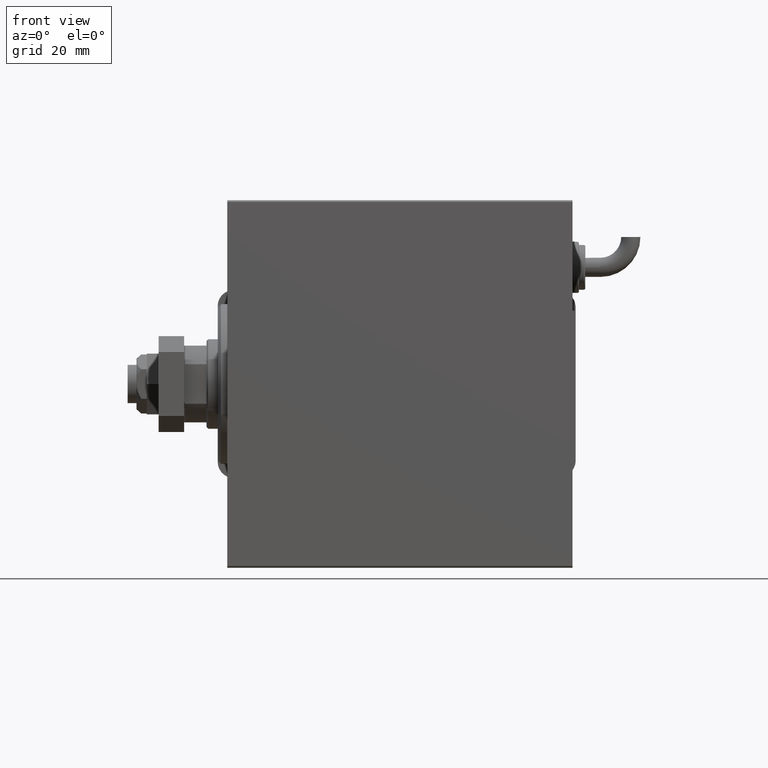
[diagram: clean part render]
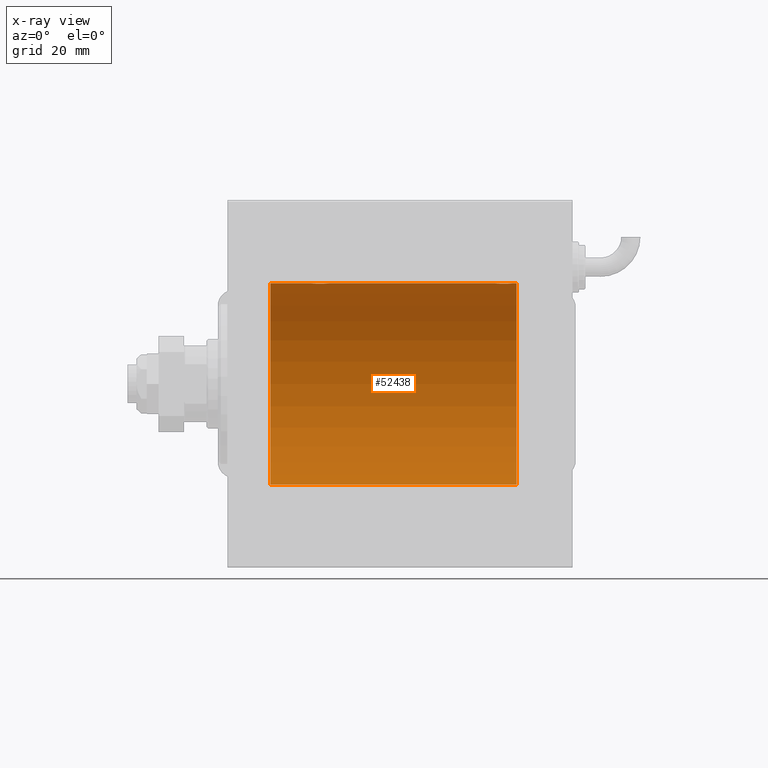
[diagram: x-ray — body ghosted, one internal face saturated and labeled with its STEP entity id]
A machine part, front view, then the same camera in x-ray: the body is ghosted and one INTERNAL B-rep face — a face not visible from any outside direction — is saturated and labeled: STEP entity #52438.
In plain terms, the highlighted cylindrical surface (partial cylindrical patch) has radius 31.5 mm, axis along (-1, -0, -0).
Its self-contained STEP definition (entity closure, byte-faithful):
#571 = VECTOR ( 'NONE', #28892, 1000.000000000000000 ) ;
#1402 = EDGE_CURVE ( 'NONE', #29039, #17533, #25237, .T. ) ;
#1727 = DIRECTION ( 'NONE',  ( 0.000000000000000000, 0.000000000000000000, 1.000000000000000000 ) ) ;
#2650 = CARTESIAN_POINT ( 'NONE',  ( 87.46816165840706958, 2.846197268611692088, 31.37124163027859325 ) ) ;
#2884 = CARTESIAN_POINT ( 'NONE',  ( 29.19688046033348883, 2.999928894260092349, 31.35682424344752306 ) ) ;
#2947 = CARTESIAN_POINT ( 'NONE',  ( 86.30529250725176382, 3.000070712257539629, 31.35681067529873189 ) ) ;
#3225 = VERTEX_POINT ( 'NONE', #41954 ) ;
#4660 = CARTESIAN_POINT ( 'NONE',  ( 27.17061414532871311, 2.385694485610531324, 31.40971707706042437 ) ) ;
#7186 = CARTESIAN_POINT ( 'NONE',  ( 86.10640401948890599, 2.980533683278887569, 31.35869737338551388 ) ) ;
#7468 = CARTESIAN_POINT ( 'NONE',  ( 89.48052481897511257, 0.3933386891556650000, 31.49812829325317054 ) ) ;
#7570 = CARTESIAN_POINT ( 'NONE',  ( 90.50000000000000000, 3.857637417314162689E-15, -31.50000000000000000 ) ) ;
#7763 = CARTESIAN_POINT ( 'NONE',  ( 88.88591626639478704, 1.829162098167821604, 31.44727042639136627 ) ) ;
#8298 = CARTESIAN_POINT ( 'NONE',  ( 28.80529250725175316, 3.000070712257528971, 31.35681067529873189 ) ) ;
#8568 = CYLINDRICAL_SURFACE ( 'NONE', #28695, 31.50000000000000000 ) ;
#8921 = VERTEX_POINT ( 'NONE', #40299 ) ;
#9227 = CARTESIAN_POINT ( 'NONE',  ( 90.50000000000000000, 0.000000000000000000, 31.50000000000000000 ) ) ;
#9444 = VERTEX_POINT ( 'NONE', #7570 ) ;
#10481 = ORIENTED_EDGE ( 'NONE', *, *, #47265, .T. ) ;
#11144 = B_SPLINE_CURVE_WITH_KNOTS ( 'NONE', 3,
 ( #58560, #17072, #16482, #20735, #35573, #57367, #34992, #43782, #30445, #15888, #52838, #29850, #25299, #48898, #25901, #44376, #2884, #8298, #35869, #59157, #23114, #17682, #55193, #4660, #36169, #44966, #50075, #46143, #22224, #13423, #40733, #41321, #49787, #54602 ),
 .UNSPECIFIED., .F., .F.,
 ( 4, 2, 2, 2, 2, 2, 2, 2, 2, 2, 2, 2, 2, 2, 2, 2, 4 ),
 ( 1.524755128789623575E-18, 0.0005865426616959163852, 0.001173085323391831252, 0.001759627985087746120, 0.002346170646783661204, 0.002932713308479576071, 0.003519255970175490938, 0.004105798631871405806, 0.004692341293567320673, 0.005278883955263235540, 0.005865426616959150408, 0.006451969278655065275, 0.007038511940350980142, 0.007625054602046895010, 0.008211597263742809877, 0.008798139925438723877, 0.009384682587134639611 ),
 .UNSPECIFIED. ) ;
#11424 = CARTESIAN_POINT ( 'NONE',  ( 87.27897008593143369, 2.903824817694236504, 31.36589387714387200 ) ) ;
#11511 = DIRECTION ( 'NONE',  ( -1.000000000000000000, -0.000000000000000000, -0.000000000000000000 ) ) ;
#12599 = CARTESIAN_POINT ( 'NONE',  ( 88.75924903376738939, 1.983444873066714020, 31.43779820687993976 ) ) ;
#13423 = CARTESIAN_POINT ( 'NONE',  ( 26.15313998394373840, 0.9664718879465885593, 31.48569500832682522 ) ) ;
#13928 = VECTOR ( 'NONE', #25444, 1000.000000000000000 ) ;
#14420 = CARTESIAN_POINT ( 'NONE',  ( 13.49999999999999822, 0.000000000000000000, 0.000000000000000000 ) ) ;
#14535 = AXIS2_PLACEMENT_3D ( 'NONE', #14420, #28675, #1727 ) ;
#15681 = EDGE_CURVE ( 'NONE', #53037, #27786, #28094, .T. ) ;
#15851 = VERTEX_POINT ( 'NONE', #26803 ) ;
#15888 = CARTESIAN_POINT ( 'NONE',  ( 30.98257411773193937, 2.260013192167872109, 31.41912713670170376 ) ) ;
#15951 = CARTESIAN_POINT ( 'NONE',  ( 89.40423806629732439, 0.7769457993854311795, 31.49100119919085472 ) ) ;
#16249 = CARTESIAN_POINT ( 'NONE',  ( 85.72154160523335520, 2.903876953428275343, 31.36588880666517909 ) ) ;
#16482 = CARTESIAN_POINT ( 'NONE',  ( 31.98052481897509836, 0.3933386891556653886, 31.49812829325316343 ) ) ;
#16543 = CARTESIAN_POINT ( 'NONE',  ( 83.89764130386932095, 1.505293155307508624, 31.46443304312125733 ) ) ;
#16846 = CARTESIAN_POINT ( 'NONE',  ( 88.33158836027361360, 2.384155341399023520, 31.40983767558390483 ) ) ;
#17072 = CARTESIAN_POINT ( 'NONE',  ( 31.99999999999998579, 0.1983379036618942437, 31.50000000000000000 ) ) ;
#17533 = VERTEX_POINT ( 'NONE', #29879 ) ;
#17682 = CARTESIAN_POINT ( 'NONE',  ( 27.67111044284136057, 2.696796994793635438, 31.38443855856935016 ) ) ;
#17691 = ORIENTED_EDGE ( 'NONE', *, *, #15681, .T. ) ;
#18713 = ORIENTED_EDGE ( 'NONE', *, *, #25829, .T. ) ;
#19099 = B_SPLINE_CURVE_WITH_KNOTS ( 'NONE', 3,
 ( #44734, #49553, #7468, #15951, #40198, #53203, #57729, #7763, #12599, #48372, #16846, #34459, #20799, #2650, #11424, #58620, #39304, #2947, #7186, #16249, #25663, #30213, #21405, #31096, #44139, #21106, #25063, #16543, #43553, #35052, #53499, #44431, #39896, #58330 ),
 .UNSPECIFIED., .F., .F.,
 ( 4, 2, 2, 2, 2, 2, 2, 2, 2, 2, 2, 2, 2, 2, 2, 2, 4 ),
 ( 2.347214371482653179E-19, 0.0005865426616959166020, 0.001173085323391832770, 0.001759627985087748722, 0.002346170646783665107, 0.002932713308479581275, 0.003519255970175497444, 0.004105798631871413612, 0.004692341293567330214, 0.005278883955263246816, 0.005865426616959162551, 0.006451969278655079153, 0.007038511940350995755, 0.007625054602046912357, 0.008211597263742828959, 0.008798139925438744693, 0.009384682587134660428 ),
 .UNSPECIFIED. ) ;
#20232 = DIRECTION ( 'NONE',  ( -1.000000000000000000, 0.000000000000000000, 0.000000000000000000 ) ) ;
#20528 = ORIENTED_EDGE ( 'NONE', *, *, #1402, .T. ) ;
#20735 = CARTESIAN_POINT ( 'NONE',  ( 31.90423806629734926, 0.7769457993854306244, 31.49100119919085472 ) ) ;
#20799 = CARTESIAN_POINT ( 'NONE',  ( 87.82915601164999941, 2.696575640577657307, 31.38445666459464789 ) ) ;
#21106 = CARTESIAN_POINT ( 'NONE',  ( 84.23894082546060247, 1.981627308739915216, 31.43792063499535061 ) ) ;
#21405 = CARTESIAN_POINT ( 'NONE',  ( 84.99557653296076865, 2.602863964129819241, 31.39246667950590464 ) ) ;
#21531 = EDGE_CURVE ( 'NONE', #9444, #27786, #56622, .T. ) ;
#22224 = CARTESIAN_POINT ( 'NONE',  ( 26.30368186223717331, 1.329867798385257815, 31.47244047903475206 ) ) ;
#22231 = ORIENTED_EDGE ( 'NONE', *, *, #58257, .T. ) ;
#22500 = FACE_OUTER_BOUND ( 'NONE', #36478, .T. ) ;
#23114 = CARTESIAN_POINT ( 'NONE',  ( 28.03447219557935099, 2.847177118681576413, 31.37115363072576102 ) ) ;
#25063 = CARTESIAN_POINT ( 'NONE',  ( 84.11488042651789954, 1.830131931565288195, 31.44721086712686642 ) ) ;
#25237 = LINE ( 'NONE', #29789, #571 ) ;
#25299 = CARTESIAN_POINT ( 'NONE',  ( 30.32915601165003139, 2.696575640577646205, 31.38445666459465500 ) ) ;
#25444 = DIRECTION ( 'NONE',  ( -1.000000000000000000, -0.000000000000000000, -0.000000000000000000 ) ) ;
#25663 = CARTESIAN_POINT ( 'NONE',  ( 85.53447219557938297, 2.847177118681589292, 31.37115363072576102 ) ) ;
#25829 = EDGE_CURVE ( 'NONE', #17533, #15851, #19099, .T. ) ;
#25901 = CARTESIAN_POINT ( 'NONE',  ( 29.77897008593146211, 2.903824817694226290, 31.36589387714387200 ) ) ;
#25985 = DIRECTION ( 'NONE',  ( 0.000000000000000000, 0.000000000000000000, 1.000000000000000000 ) ) ;
#26803 = CARTESIAN_POINT ( 'NONE',  ( 83.49999999999998579, -2.116947682205846230E-23, 31.50000000000000000 ) ) ;
#27018 = ORIENTED_EDGE ( 'NONE', *, *, #55700, .T. ) ;
#27786 = VERTEX_POINT ( 'NONE', #57526 ) ;
#28094 = CIRCLE ( 'NONE', #14535, 31.50000000000000000 ) ;
#28675 = DIRECTION ( 'NONE',  ( -1.000000000000000000, 0.000000000000000000, 0.000000000000000000 ) ) ;
#28695 = AXIS2_PLACEMENT_3D ( 'NONE', #53996, #59430, #45828 ) ;
#28892 = DIRECTION ( 'NONE',  ( -1.000000000000000000, -0.000000000000000000, -0.000000000000000000 ) ) ;
#29039 = VERTEX_POINT ( 'NONE', #56997 ) ;
#29789 = CARTESIAN_POINT ( 'NONE',  ( 90.50000000000000000, 0.000000000000000000, 31.50000000000000000 ) ) ;
#29850 = CARTESIAN_POINT ( 'NONE',  ( 30.50363134844576507, 2.603460270751690508, 31.39242096616744249 ) ) ;
#29879 = CARTESIAN_POINT ( 'NONE',  ( 89.50000000000000000, -2.415502498297804861E-16, 31.50000000000000000 ) ) ;
#30213 = CARTESIAN_POINT ( 'NONE',  ( 85.17111044284132504, 2.696796994793650981, 31.38443855856935016 ) ) ;
#30250 = EDGE_CURVE ( 'NONE', #29039, #9444, #58873, .T. ) ;
#30445 = CARTESIAN_POINT ( 'NONE',  ( 31.25924903376736097, 1.983444873066708247, 31.43779820687992554 ) ) ;
#31096 = CARTESIAN_POINT ( 'NONE',  ( 84.67061414532871311, 2.385694485610543314, 31.40971707706042437 ) ) ;
#34459 = CARTESIAN_POINT ( 'NONE',  ( 88.00363134844577928, 2.603460270751700278, 31.39242096616744959 ) ) ;
#34992 = CARTESIAN_POINT ( 'NONE',  ( 31.60366586440800063, 1.503114925126257218, 31.46454030768326149 ) ) ;
#35052 = CARTESIAN_POINT ( 'NONE',  ( 83.65313998394373129, 0.9664718879465890033, 31.48569500832682522 ) ) ;
#35573 = CARTESIAN_POINT ( 'NONE',  ( 31.84649213527308120, 0.9675486622706125361, 31.48566161620712478 ) ) ;
#35869 = CARTESIAN_POINT ( 'NONE',  ( 28.60640401948893086, 2.980533683278877355, 31.35869737338551388 ) ) ;
#36169 = CARTESIAN_POINT ( 'NONE',  ( 27.01911300874993316, 2.261707786034451662, 31.41901301017587755 ) ) ;
#36478 = EDGE_LOOP ( 'NONE', ( #39327, #44299, #20528, #18713, #27018, #22231, #10481, #17691 ) ) ;
#36619 = VECTOR ( 'NONE', #41365, 1000.000000000000000 ) ;
#39304 = CARTESIAN_POINT ( 'NONE',  ( 86.69688046033346041, 2.999928894260102563, 31.35682424344752306 ) ) ;
#39327 = ORIENTED_EDGE ( 'NONE', *, *, #21531, .F. ) ;
#39896 = CARTESIAN_POINT ( 'NONE',  ( 83.49999999999997158, 0.1958503357044810711, 31.50000000000000000 ) ) ;
#40198 = CARTESIAN_POINT ( 'NONE',  ( 89.34649213527309541, 0.9675486622706157558, 31.48566161620712478 ) ) ;
#40299 = CARTESIAN_POINT ( 'NONE',  ( 26.00000000000000355, -2.117263226567934635E-23, 31.50000000000000000 ) ) ;
#40733 = CARTESIAN_POINT ( 'NONE',  ( 26.09639262129909554, 0.7794402936641312563, 31.49094275383852093 ) ) ;
#41321 = CARTESIAN_POINT ( 'NONE',  ( 26.01962964533704081, 0.3947854228308197988, 31.49811339059600002 ) ) ;
#41365 = DIRECTION ( 'NONE',  ( -1.000000000000000000, -0.000000000000000000, -0.000000000000000000 ) ) ;
#41954 = CARTESIAN_POINT ( 'NONE',  ( 32.00000000000000000, -3.906065418435112189E-16, 31.50000000000000000 ) ) ;
#43327 = CARTESIAN_POINT ( 'NONE',  ( 90.50000000000000000, 0.000000000000000000, 31.50000000000000000 ) ) ;
#43553 = CARTESIAN_POINT ( 'NONE',  ( 83.80368186223715554, 1.329867798385260702, 31.47244047903475916 ) ) ;
#43782 = CARTESIAN_POINT ( 'NONE',  ( 31.38591626639475862, 1.829162098167815387, 31.44727042639135917 ) ) ;
#44139 = CARTESIAN_POINT ( 'NONE',  ( 84.51911300874994026, 2.261707786034461432, 31.41901301017587755 ) ) ;
#44299 = ORIENTED_EDGE ( 'NONE', *, *, #30250, .F. ) ;
#44376 = CARTESIAN_POINT ( 'NONE',  ( 29.39162658774828785, 2.980875975682584222, 31.35866508162785848 ) ) ;
#44431 = CARTESIAN_POINT ( 'NONE',  ( 83.51962964533699108, 0.3947854228308227409, 31.49811339059598581 ) ) ;
#44734 = CARTESIAN_POINT ( 'NONE',  ( 89.50000000000000000, -2.415502498297804861E-16, 31.50000000000000000 ) ) ;
#44966 = CARTESIAN_POINT ( 'NONE',  ( 26.73894082546058826, 1.981627308739907001, 31.43792063499534351 ) ) ;
#45828 = DIRECTION ( 'NONE',  ( 0.000000000000000000, 0.000000000000000000, 1.000000000000000000 ) ) ;
#45891 = LINE ( 'NONE', #9227, #36619 ) ;
#46143 = CARTESIAN_POINT ( 'NONE',  ( 26.39764130386935648, 1.505293155307497965, 31.46443304312125022 ) ) ;
#46321 = AXIS2_PLACEMENT_3D ( 'NONE', #57760, #20232, #25985 ) ;
#47265 = EDGE_CURVE ( 'NONE', #8921, #53037, #52974, .T. ) ;
#48161 = CARTESIAN_POINT ( 'NONE',  ( 90.50000000000000000, 3.857637417314162689E-15, -31.50000000000000000 ) ) ;
#48211 = VECTOR ( 'NONE', #11511, 1000.000000000000000 ) ;
#48372 = CARTESIAN_POINT ( 'NONE',  ( 88.48257411773192871, 2.260013192167880547, 31.41912713670171087 ) ) ;
#48898 = CARTESIAN_POINT ( 'NONE',  ( 29.96816165840708379, 2.846197268611679654, 31.37124163027859325 ) ) ;
#49553 = CARTESIAN_POINT ( 'NONE',  ( 89.50000000000001421, 0.1983379036618948266, 31.49999999999999289 ) ) ;
#49787 = CARTESIAN_POINT ( 'NONE',  ( 26.00000000000001066, 0.1958503357044829030, 31.50000000000000711 ) ) ;
#49911 = CARTESIAN_POINT ( 'NONE',  ( 13.49999999999999822, 0.000000000000000000, 31.50000000000000000 ) ) ;
#50075 = CARTESIAN_POINT ( 'NONE',  ( 26.61488042651788177, 1.830131931565276426, 31.44721086712685931 ) ) ;
#52438 = ADVANCED_FACE ( 'NONE', ( #22500 ), #8568, .F. ) ;
#52838 = CARTESIAN_POINT ( 'NONE',  ( 30.83158836027363492, 2.384155341399014638, 31.40983767558391193 ) ) ;
#52974 = LINE ( 'NONE', #43327, #13928 ) ;
#53037 = VERTEX_POINT ( 'NONE', #49911 ) ;
#53203 = CARTESIAN_POINT ( 'NONE',  ( 89.19583971800496158, 1.330832861354135144, 31.47239936387595449 ) ) ;
#53499 = CARTESIAN_POINT ( 'NONE',  ( 83.59639262129910264, 0.7794402936641361412, 31.49094275383853514 ) ) ;
#53996 = CARTESIAN_POINT ( 'NONE',  ( 90.50000000000000000, 0.000000000000000000, 0.000000000000000000 ) ) ;
#54602 = CARTESIAN_POINT ( 'NONE',  ( 26.00000000000000355, -2.117263226567934635E-23, 31.50000000000000000 ) ) ;
#55193 = CARTESIAN_POINT ( 'NONE',  ( 27.49557653296076154, 2.602863964129807250, 31.39246667950590464 ) ) ;
#55700 = EDGE_CURVE ( 'NONE', #15851, #3225, #45891, .T. ) ;
#56622 = LINE ( 'NONE', #48161, #48211 ) ;
#56997 = CARTESIAN_POINT ( 'NONE',  ( 90.50000000000000000, 0.000000000000000000, 31.50000000000000000 ) ) ;
#57367 = CARTESIAN_POINT ( 'NONE',  ( 31.69583971800497935, 1.330832861354130925, 31.47239936387596160 ) ) ;
#57526 = CARTESIAN_POINT ( 'NONE',  ( 13.49999999999999822, 3.857637417314162689E-15, -31.50000000000000000 ) ) ;
#57729 = CARTESIAN_POINT ( 'NONE',  ( 89.10366586440801484, 1.503114925126262547, 31.46454030768325438 ) ) ;
#57760 = CARTESIAN_POINT ( 'NONE',  ( 90.50000000000000000, 0.000000000000000000, 0.000000000000000000 ) ) ;
#58257 = EDGE_CURVE ( 'NONE', #3225, #8921, #11144, .T. ) ;
#58330 = CARTESIAN_POINT ( 'NONE',  ( 83.49999999999998579, -2.116947682205846230E-23, 31.50000000000000000 ) ) ;
#58560 = CARTESIAN_POINT ( 'NONE',  ( 32.00000000000000000, -3.906065418435112189E-16, 31.50000000000000000 ) ) ;
#58620 = CARTESIAN_POINT ( 'NONE',  ( 86.89162658774827719, 2.980875975682594881, 31.35866508162786559 ) ) ;
#58873 = CIRCLE ( 'NONE', #46321, 31.50000000000000000 ) ;
#59157 = CARTESIAN_POINT ( 'NONE',  ( 28.22154160523339783, 2.903876953428266461, 31.36588880666517909 ) ) ;
#59430 = DIRECTION ( 'NONE',  ( -1.000000000000000000, -0.000000000000000000, -0.000000000000000000 ) ) ;